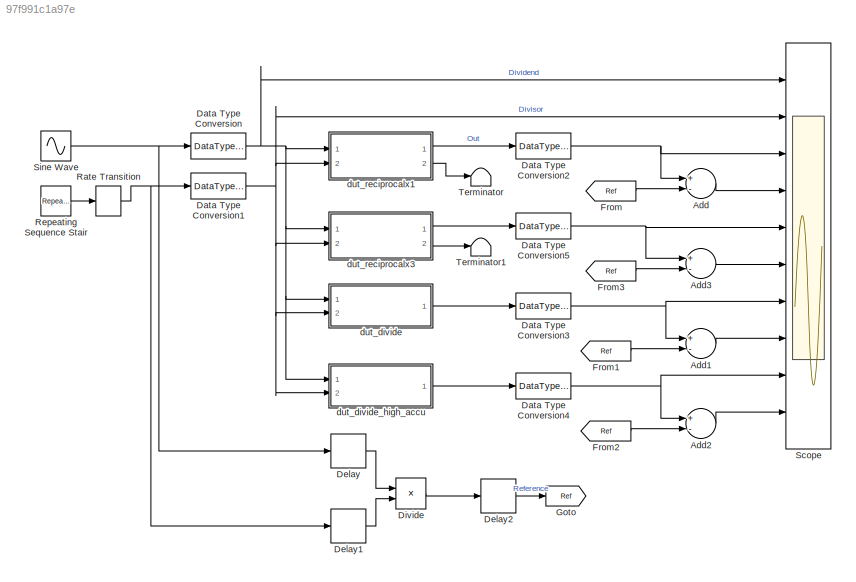
MODEL slx_97f991c1a97e
KIND model
CONFIG AbsTol = auto
CONFIG FixedStep = auto
CONFIG MaxStep = auto
CONFIG MinStep = auto
CONFIG RelTol = 1e-3
CONFIG SampleTimeConstraint = Unconstrained
CONFIG Solver = FixedStepDiscrete
CONFIG SolverMode = SingleTasking
CONFIG SolverName = FixedStepDiscrete
CONFIG StartTime = 0.0
CONFIG StopTime = 4
BLOCK [Sum] Add
  InputSameDT = off
  Inputs = +-
  OutDataTypeStr = Inherit: Inherit via internal rule
  Ports = [2, 1]
  SaturateOnIntegerOverflow = off
BLOCK [Sum] Add1
  InputSameDT = off
  Inputs = +-
  OutDataTypeStr = Inherit: Inherit via internal rule
  Ports = [2, 1]
  SaturateOnIntegerOverflow = off
BLOCK [Sum] Add2
  InputSameDT = off
  Inputs = +-
  OutDataTypeStr = Inherit: Inherit via internal rule
  Ports = [2, 1]
  SaturateOnIntegerOverflow = off
BLOCK [Sum] Add3
  InputSameDT = off
  Inputs = +-
  OutDataTypeStr = Inherit: Inherit via internal rule
  Ports = [2, 1]
  SaturateOnIntegerOverflow = off
BLOCK [DataTypeConversion] Data Type Conversion
  OutDataTypeStr = fixdt(1,16,14)
  RndMeth = Floor
  SaturateOnIntegerOverflow = off
BLOCK [DataTypeConversion] Data Type Conversion1
  OutDataTypeStr = fixdt(1,6,2)
  OutMax = 5*1.3
  OutMin = 0
  RndMeth = Floor
  SaturateOnIntegerOverflow = off
BLOCK [DataTypeConversion] Data Type Conversion2
  OutDataTypeStr = double
  RndMeth = Floor
  SaturateOnIntegerOverflow = off
BLOCK [DataTypeConversion] Data Type Conversion3
  OutDataTypeStr = double
  RndMeth = Floor
  SaturateOnIntegerOverflow = off
BLOCK [DataTypeConversion] Data Type Conversion4
  OutDataTypeStr = double
  RndMeth = Floor
  SaturateOnIntegerOverflow = off
BLOCK [DataTypeConversion] Data Type Conversion5
  OutDataTypeStr = double
  RndMeth = Floor
  SaturateOnIntegerOverflow = off
BLOCK [Delay] Delay
  DelayLength = 1
  InputPortMap = u0
  Ports = [1, 1]
BLOCK [Delay] Delay1
  DelayLength = 1
  InputPortMap = u0
  Ports = [1, 1]
BLOCK [Delay] Delay2
  DelayLength = 1
  InputPortMap = u0
  Ports = [1, 1]
BLOCK [Product] Divide
  InputSameDT = off
  Inputs = */
  OutDataTypeStr = Inherit: Inherit via internal rule
  Ports = [2, 1]
  RndMeth = Nearest
  SaturateOnIntegerOverflow = off
BLOCK [From] From
  GotoTag = Ref
BLOCK [From] From1
  GotoTag = Ref
BLOCK [From] From2
  GotoTag = Ref
BLOCK [From] From3
  GotoTag = Ref
BLOCK [Goto] Goto
  GotoTag = Ref
BLOCK [RateTransition] Rate Transition
  X0 = 1
BLOCK [Reference] Repeating Sequence Stair  REF=simulink/Sources/Repeating
Sequence
Stair
  Ports = [0, 1]
  SourceBlock = simulink/Sources/Repeating\nSequence\nStair
  SourceType = Repeating Sequence Stair
BLOCK [Scope] Scope
  NumInputPorts = 10
  Ports = [10]
  ScopeSpecificationString = Simulink.scopes.TimeScopeBlockCfg('CurrentConfiguration', extmgr.ConfigurationSet(extmgr.Configuration('Core','General UI',true),extmgr.Configuration('Core','Source UI',true),extmgr.Configuration('Sources','WiredSimulink',true,'DataLoggingSaveFormat','StructureWithTime','DataLoggingDecimation','1','DataLoggingDecimateData',true),extmgr.Configuration('Visuals','Time Domain',true,'SerializedDisplays...<+9240ch>
BLOCK [Sin] Sine Wave
  Frequency = 2*pi*1
  Ports = [0, 1]
  SampleTime = 1/1000
BLOCK [Terminator] Terminator
BLOCK [Terminator] Terminator1
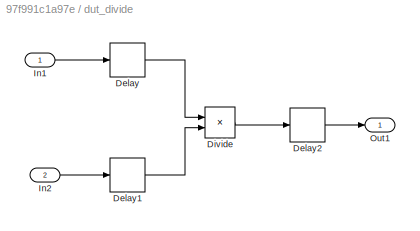
BLOCK [SubSystem] dut_divide
  Ports = [2, 1]
  RequestExecContextInheritance = off
  Variant = off
BLOCK [Delay] dut_divide/Delay
  DelayLength = 1
  InputPortMap = u0
  Ports = [1, 1]
BLOCK [Delay] dut_divide/Delay1
  DelayLength = 1
  InputPortMap = u0
  Ports = [1, 1]
BLOCK [Delay] dut_divide/Delay2
  DelayLength = 1
  InputPortMap = u0
  Ports = [1, 1]
BLOCK [Product] dut_divide/Divide
  InputSameDT = off
  Inputs = */
  OutDataTypeStr = Inherit: Inherit via internal rule
  Ports = [2, 1]
BLOCK [Inport] dut_divide/In1
  IconDisplay = Port number
BLOCK [Inport] dut_divide/In2
  IconDisplay = Port number
  Port = 2
BLOCK [Outport] dut_divide/Out1
  IconDisplay = Port number
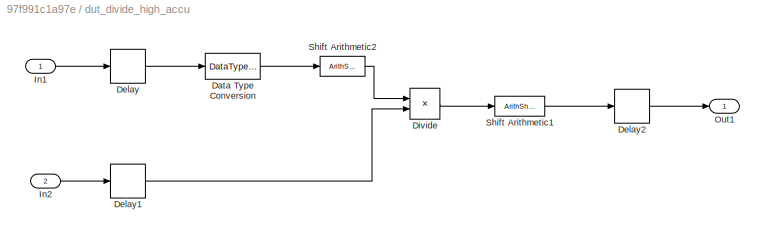
BLOCK [SubSystem] dut_divide_high_accu
  Ports = [2, 1]
  RequestExecContextInheritance = off
  Variant = off
BLOCK [DataTypeConversion] dut_divide_high_accu/Data Type Conversion
  OutDataTypeStr = fixdt(1,32,30)
  RndMeth = Floor
  SaturateOnIntegerOverflow = off
BLOCK [Delay] dut_divide_high_accu/Delay
  DelayLength = 1
  InputPortMap = u0
  Ports = [1, 1]
BLOCK [Delay] dut_divide_high_accu/Delay1
  DelayLength = 1
  InputPortMap = u0
  Ports = [1, 1]
BLOCK [Delay] dut_divide_high_accu/Delay2
  DelayLength = 1
  InputPortMap = u0
  Ports = [1, 1]
BLOCK [Product] dut_divide_high_accu/Divide
  InputSameDT = off
  Inputs = */
  OutDataTypeStr = Inherit: Inherit via internal rule
  Ports = [2, 1]
BLOCK [Inport] dut_divide_high_accu/In1
  IconDisplay = Port number
BLOCK [Inport] dut_divide_high_accu/In2
  IconDisplay = Port number
  Port = 2
BLOCK [Outport] dut_divide_high_accu/Out1
  IconDisplay = Port number
BLOCK [ArithShift] dut_divide_high_accu/Shift Arithmetic1
  BinPtShiftNumber = -30
  InputPortMap = u0
  Ports = [1, 1]
BLOCK [ArithShift] dut_divide_high_accu/Shift Arithmetic2
  BinPtShiftNumber = 30
  InputPortMap = u0
  Ports = [1, 1]
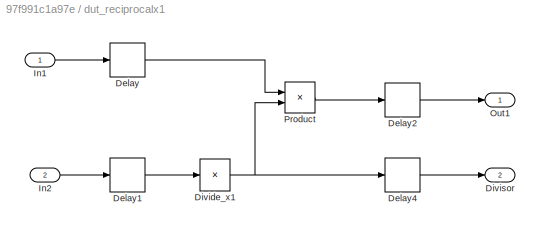
BLOCK [SubSystem] dut_reciprocalx1
  Ports = [2, 2]
  RequestExecContextInheritance = off
  Variant = off
BLOCK [Delay] dut_reciprocalx1/Delay
  DelayLength = 1
  InputPortMap = u0
  Ports = [1, 1]
BLOCK [Delay] dut_reciprocalx1/Delay1
  DelayLength = 1
  InputPortMap = u0
  Ports = [1, 1]
BLOCK [Delay] dut_reciprocalx1/Delay2
  DelayLength = 1
  InputPortMap = u0
  Ports = [1, 1]
BLOCK [Delay] dut_reciprocalx1/Delay4
  DelayLength = 1
  InputPortMap = u0
  Ports = [1, 1]
BLOCK [Product] dut_reciprocalx1/Divide_x1
  InputSameDT = off
  Inputs = /
  OutDataTypeStr = fixdt(1,20,14)
  Ports = [1, 1]
BLOCK [Outport] dut_reciprocalx1/Divisor
  IconDisplay = Port number
  Port = 2
BLOCK [Inport] dut_reciprocalx1/In1
  IconDisplay = Port number
BLOCK [Inport] dut_reciprocalx1/In2
  IconDisplay = Port number
  Port = 2
BLOCK [Outport] dut_reciprocalx1/Out1
  IconDisplay = Port number
BLOCK [Product] dut_reciprocalx1/Product
  InputSameDT = off
  OutDataTypeStr = Inherit: Inherit via internal rule
  Ports = [2, 1]
  SaturateOnIntegerOverflow = off
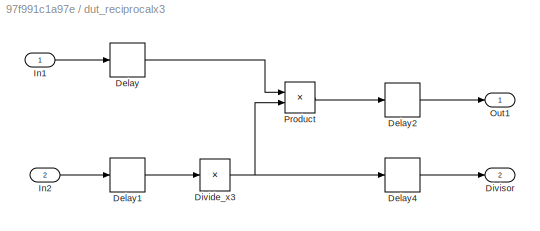
BLOCK [SubSystem] dut_reciprocalx3
  Ports = [2, 2]
  RequestExecContextInheritance = off
  Variant = off
BLOCK [Delay] dut_reciprocalx3/Delay
  DelayLength = 1
  InputPortMap = u0
  Ports = [1, 1]
BLOCK [Delay] dut_reciprocalx3/Delay1
  DelayLength = 1
  InputPortMap = u0
  Ports = [1, 1]
BLOCK [Delay] dut_reciprocalx3/Delay2
  DelayLength = 1
  InputPortMap = u0
  Ports = [1, 1]
BLOCK [Delay] dut_reciprocalx3/Delay4
  DelayLength = 1
  InputPortMap = u0
  Ports = [1, 1]
BLOCK [Product] dut_reciprocalx3/Divide_x3
  InputSameDT = off
  Inputs = /
  OutDataTypeStr = fixdt(1,20,14)
  Ports = [1, 1]
BLOCK [Outport] dut_reciprocalx3/Divisor
  IconDisplay = Port number
  Port = 2
BLOCK [Inport] dut_reciprocalx3/In1
  IconDisplay = Port number
BLOCK [Inport] dut_reciprocalx3/In2
  IconDisplay = Port number
  Port = 2
BLOCK [Outport] dut_reciprocalx3/Out1
  IconDisplay = Port number
BLOCK [Product] dut_reciprocalx3/Product
  InputSameDT = off
  OutDataTypeStr = Inherit: Inherit via internal rule
  Ports = [2, 1]
  SaturateOnIntegerOverflow = off
LINE Add1:1 -> Scope:8
LINE Add2:1 -> Scope:10
LINE Add3:1 -> Scope:6
LINE Add:1 -> Scope:4
NET Data Type Conversion1:1 -> Scope:2, dut_divide:2, dut_divide_high_accu:2, dut_reciprocalx1:2, dut_reciprocalx3:2
NET Data Type Conversion2:1 -> Add:1, Scope:3
NET Data Type Conversion3:1 -> Add1:1, Scope:7
NET Data Type Conversion4:1 -> Add2:1, Scope:9
NET Data Type Conversion5:1 -> Add3:1, Scope:5
NET Data Type Conversion:1 -> Scope:1, dut_divide:1, dut_divide_high_accu:1, dut_reciprocalx1:1, dut_reciprocalx3:1
LINE Delay1:1 -> Divide:2
LINE Delay2:1 -> Goto:1
LINE Delay:1 -> Divide:1
LINE Divide:1 -> Delay2:1
LINE From1:1 -> Add1:2
LINE From2:1 -> Add2:2
LINE From3:1 -> Add3:2
LINE From:1 -> Add:2
NET Rate Transition:1 -> Data Type Conversion1:1, Delay1:1
LINE Repeating Sequence Stair:1 -> Rate Transition:1
NET Sine Wave:1 -> Data Type Conversion:1, Delay:1
LINE dut_divide/Delay1:1 -> dut_divide/Divide:2
LINE dut_divide/Delay2:1 -> dut_divide/Out1:1
LINE dut_divide/Delay:1 -> dut_divide/Divide:1
LINE dut_divide/Divide:1 -> dut_divide/Delay2:1
LINE dut_divide/In1:1 -> dut_divide/Delay:1
LINE dut_divide/In2:1 -> dut_divide/Delay1:1
LINE dut_divide:1 -> Data Type Conversion3:1
LINE dut_divide_high_accu/Data Type Conversion:1 -> dut_divide_high_accu/Shift Arithmetic2:1
LINE dut_divide_high_accu/Delay1:1 -> dut_divide_high_accu/Divide:2
LINE dut_divide_high_accu/Delay2:1 -> dut_divide_high_accu/Out1:1
LINE dut_divide_high_accu/Delay:1 -> dut_divide_high_accu/Data Type Conversion:1
LINE dut_divide_high_accu/Divide:1 -> dut_divide_high_accu/Shift Arithmetic1:1
LINE dut_divide_high_accu/In1:1 -> dut_divide_high_accu/Delay:1
LINE dut_divide_high_accu/In2:1 -> dut_divide_high_accu/Delay1:1
LINE dut_divide_high_accu/Shift Arithmetic1:1 -> dut_divide_high_accu/Delay2:1
LINE dut_divide_high_accu/Shift Arithmetic2:1 -> dut_divide_high_accu/Divide:1
LINE dut_divide_high_accu:1 -> Data Type Conversion4:1
LINE dut_reciprocalx1/Delay1:1 -> dut_reciprocalx1/Divide_x1:1
LINE dut_reciprocalx1/Delay2:1 -> dut_reciprocalx1/Out1:1
LINE dut_reciprocalx1/Delay4:1 -> dut_reciprocalx1/Divisor:1
LINE dut_reciprocalx1/Delay:1 -> dut_reciprocalx1/Product:1
NET dut_reciprocalx1/Divide_x1:1 -> dut_reciprocalx1/Delay4:1, dut_reciprocalx1/Product:2
LINE dut_reciprocalx1/In1:1 -> dut_reciprocalx1/Delay:1
LINE dut_reciprocalx1/In2:1 -> dut_reciprocalx1/Delay1:1
LINE dut_reciprocalx1/Product:1 -> dut_reciprocalx1/Delay2:1
LINE dut_reciprocalx1:1 -> Data Type Conversion2:1
LINE dut_reciprocalx1:2 -> Terminator:1
LINE dut_reciprocalx3/Delay1:1 -> dut_reciprocalx3/Divide_x3:1
LINE dut_reciprocalx3/Delay2:1 -> dut_reciprocalx3/Out1:1
LINE dut_reciprocalx3/Delay4:1 -> dut_reciprocalx3/Divisor:1
LINE dut_reciprocalx3/Delay:1 -> dut_reciprocalx3/Product:1
NET dut_reciprocalx3/Divide_x3:1 -> dut_reciprocalx3/Delay4:1, dut_reciprocalx3/Product:2
LINE dut_reciprocalx3/In1:1 -> dut_reciprocalx3/Delay:1
LINE dut_reciprocalx3/In2:1 -> dut_reciprocalx3/Delay1:1
LINE dut_reciprocalx3/Product:1 -> dut_reciprocalx3/Delay2:1
LINE dut_reciprocalx3:1 -> Data Type Conversion5:1
LINE dut_reciprocalx3:2 -> Terminator1:1
note: NET lines group one-source signal fan-out (src -> all destinations, sorted); 1:1 wires keep LINE
